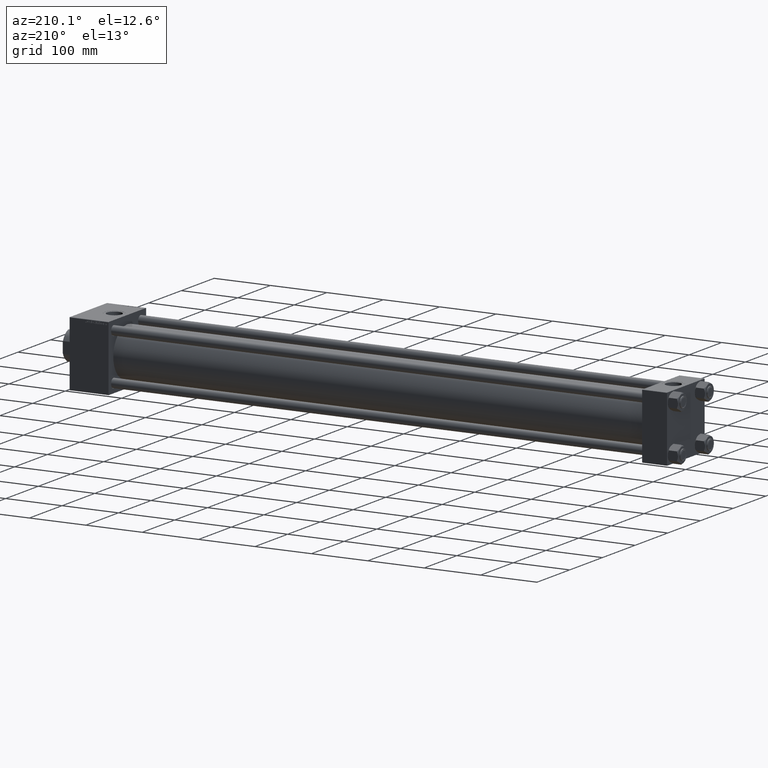
[diagram: clean part render]
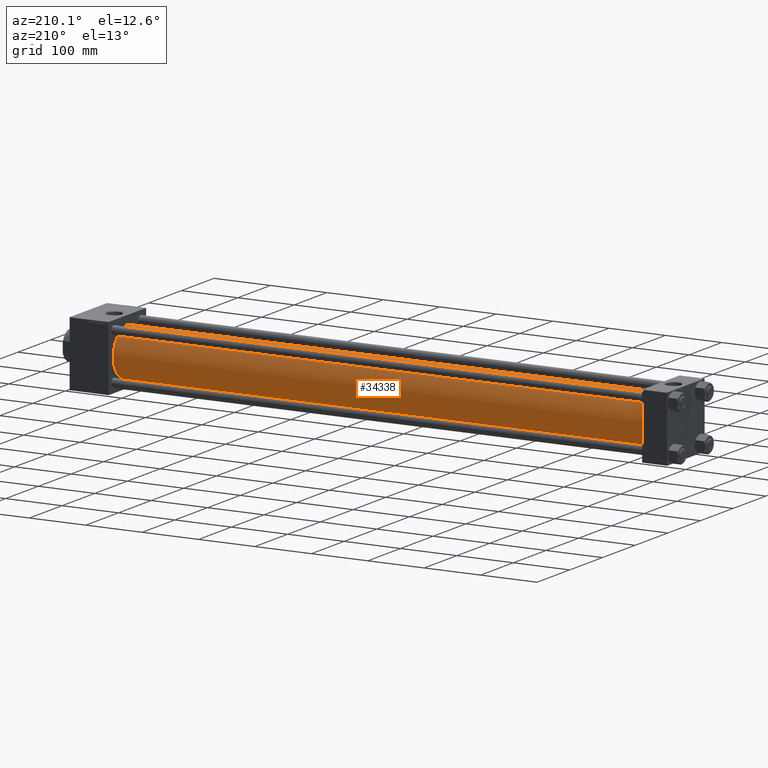
[diagram: same view with one face highlighted and labeled with its STEP entity id]
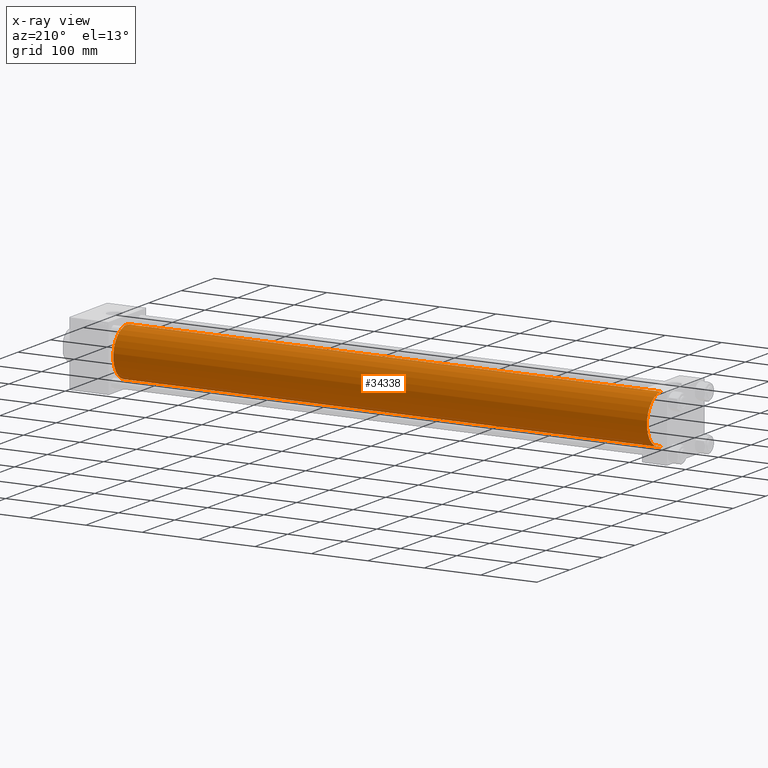
[diagram: x-ray of the same camera — body ghosted, the highlighted face saturated]
A machine part, auxiliary view. The second image highlights one B-rep face of the part: STEP entity #34338.
The next image is the same camera in x-ray: the body ghosted, the highlighted face saturated — about 0% of this face is hidden behind the body in this view.
In plain terms, the highlighted cylindrical surface (edge-blend (fillet) strip) has radius 43 mm, axis along (-1, -0, -0).
Its self-contained STEP definition (entity closure, byte-faithful):
#1218 = VERTEX_POINT ( 'NONE', #45637 ) ;
#3266 = DIRECTION ( 'NONE',  ( -1.000000000000000000, -0.000000000000000000, -0.000000000000000000 ) ) ;
#4194 = VERTEX_POINT ( 'NONE', #29490 ) ;
#4781 = AXIS2_PLACEMENT_3D ( 'NONE', #21381, #36999, #14486 ) ;
#9921 = CYLINDRICAL_SURFACE ( 'NONE', #31467, 43.00000000000000000 ) ;
#10669 = ORIENTED_EDGE ( 'NONE', *, *, #46652, .T. ) ;
#12161 = DIRECTION ( 'NONE',  ( -1.000000000000000000, -0.000000000000000000, -0.000000000000000000 ) ) ;
#13837 = VERTEX_POINT ( 'NONE', #38489 ) ;
#14054 = CARTESIAN_POINT ( 'NONE',  ( 990.0000000000000000, 2.663896022368406645E-15, -43.00000000000000000 ) ) ;
#14221 = EDGE_CURVE ( 'NONE', #16107, #4194, #27158, .T. ) ;
#14486 = DIRECTION ( 'NONE',  ( 0.000000000000000000, 0.000000000000000000, 1.000000000000000000 ) ) ;
#14913 = ORIENTED_EDGE ( 'NONE', *, *, #43349, .F. ) ;
#15012 = EDGE_LOOP ( 'NONE', ( #48239, #28078, #10669, #14913 ) ) ;
#16107 = VERTEX_POINT ( 'NONE', #14054 ) ;
#16588 = DIRECTION ( 'NONE',  ( -1.000000000000000000, -0.000000000000000000, -0.000000000000000000 ) ) ;
#17325 = EDGE_CURVE ( 'NONE', #16107, #13837, #44242, .T. ) ;
#20662 = CARTESIAN_POINT ( 'NONE',  ( 990.0000000000000000, 2.663896022368406645E-15, -43.00000000000000000 ) ) ;
#21381 = CARTESIAN_POINT ( 'NONE',  ( 44.00000000000004263, -2.602085213965210642E-15, 0.000000000000000000 ) ) ;
#22797 = DIRECTION ( 'NONE',  ( 0.000000000000000000, 0.000000000000000000, -1.000000000000000000 ) ) ;
#27158 = CIRCLE ( 'NONE', #36930, 43.00000000000000000 ) ;
#28078 = ORIENTED_EDGE ( 'NONE', *, *, #17325, .T. ) ;
#28887 = VECTOR ( 'NONE', #16588, 1000.000000000000000 ) ;
#29490 = CARTESIAN_POINT ( 'NONE',  ( 990.0000000000000000, -2.602085213965210642E-15, 43.00000000000000000 ) ) ;
#30237 = CARTESIAN_POINT ( 'NONE',  ( 990.0000000000000000, -2.602085213965210642E-15, 0.000000000000000000 ) ) ;
#31467 = AXIS2_PLACEMENT_3D ( 'NONE', #38827, #3266, #35242 ) ;
#31616 = LINE ( 'NONE', #31864, #44834 ) ;
#31864 = CARTESIAN_POINT ( 'NONE',  ( 990.0000000000000000, -2.602085213965210642E-15, 43.00000000000000000 ) ) ;
#33208 = FACE_OUTER_BOUND ( 'NONE', #15012, .T. ) ;
#34338 = ADVANCED_FACE ( 'NONE', ( #33208 ), #9921, .T. ) ;
#35242 = DIRECTION ( 'NONE',  ( 0.000000000000000000, 0.000000000000000000, 1.000000000000000000 ) ) ;
#36930 = AXIS2_PLACEMENT_3D ( 'NONE', #30237, #37397, #22797 ) ;
#36999 = DIRECTION ( 'NONE',  ( 1.000000000000000000, -0.000000000000000000, 0.000000000000000000 ) ) ;
#37397 = DIRECTION ( 'NONE',  ( 1.000000000000000000, 0.000000000000000000, 0.000000000000000000 ) ) ;
#38489 = CARTESIAN_POINT ( 'NONE',  ( 44.00000000000004263, 2.663896022368406645E-15, -43.00000000000000000 ) ) ;
#38827 = CARTESIAN_POINT ( 'NONE',  ( 990.0000000000000000, -2.602085213965210642E-15, 0.000000000000000000 ) ) ;
#43349 = EDGE_CURVE ( 'NONE', #4194, #1218, #31616, .T. ) ;
#44242 = LINE ( 'NONE', #20662, #28887 ) ;
#44834 = VECTOR ( 'NONE', #12161, 1000.000000000000000 ) ;
#45637 = CARTESIAN_POINT ( 'NONE',  ( 44.00000000000004263, -2.602085213965210642E-15, 43.00000000000000000 ) ) ;
#46652 = EDGE_CURVE ( 'NONE', #13837, #1218, #49867, .T. ) ;
#48239 = ORIENTED_EDGE ( 'NONE', *, *, #14221, .F. ) ;
#49867 = CIRCLE ( 'NONE', #4781, 43.00000000000000000 ) ;